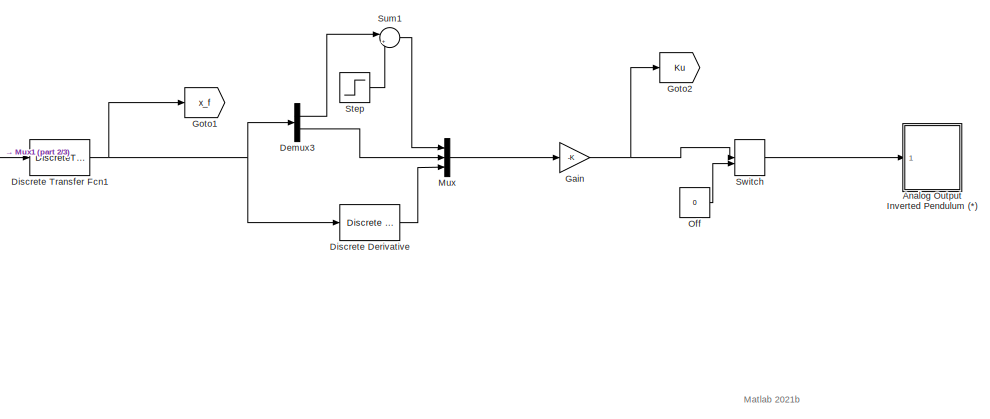
[diagram: root canvas - part 1/3, top center region]
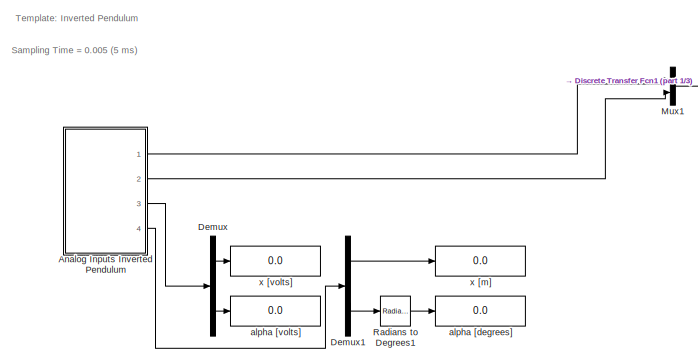
[diagram: root canvas - part 2/3, top left region]
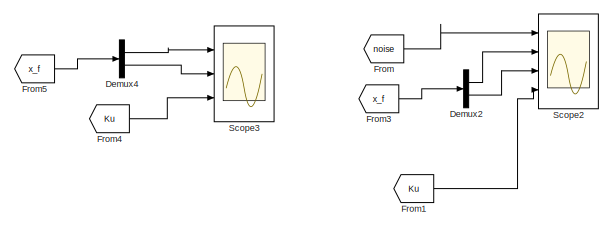
[diagram: root canvas - part 3/3, bottom right region]
MODEL slx_4a18c5ab3ae8
KIND model
CONFIG AbsTol = auto
CONFIG EnableMultiTasking = off
CONFIG FixedStep = 0.005
CONFIG MaxStep = auto
CONFIG MinStep = auto
CONFIG RelTol = 1e-3
CONFIG SampleTimeConstraint = Unconstrained
CONFIG SolverName = FixedStepDiscrete
CONFIG StartTime = 0.0
CONFIG StopTime = 40
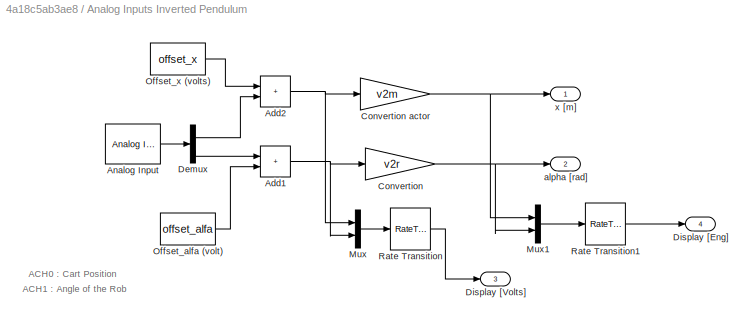
BLOCK [SubSystem] Analog Inputs Inverted Pendulum
  Ports = [0, 4]
  RequestExecContextInheritance = off
BLOCK [Sum] Analog Inputs Inverted Pendulum/Add1
  IconShape = rectangular
  Ports = [2, 1]
BLOCK [Sum] Analog Inputs Inverted Pendulum/Add2
  IconShape = rectangular
  Ports = [2, 1]
BLOCK [Reference] Analog Inputs Inverted Pendulum/Analog Input  REF=sldrtlib/Analog Input
  AttributesFormatString = National Instruments\nPCI-6014 [auto]
  Ports = [0, 1]
  SourceBlock = sldrtlib/Analog Input
  SourceProductBaseCode = WT
  SourceType = Simulink Desktop Real-Time Analog Input
BLOCK [Gain] Analog Inputs Inverted Pendulum/Convertion 
  Gain = v2r
BLOCK [Gain] Analog Inputs Inverted Pendulum/Convertion actor
  Gain = v2m
BLOCK [Demux] Analog Inputs Inverted Pendulum/Demux
  Outputs = 2
  Ports = [1, 2]
BLOCK [Outport] Analog Inputs Inverted Pendulum/Display [Eng]
  Port = 4
  VectorParamsAs1DForOutWhenUnconnected = off
BLOCK [Outport] Analog Inputs Inverted Pendulum/Display [Volts]
  Port = 3
  VectorParamsAs1DForOutWhenUnconnected = off
BLOCK [Mux] Analog Inputs Inverted Pendulum/Mux
  DisplayOption = bar
  Inputs = 2
  Ports = [2, 1]
BLOCK [Mux] Analog Inputs Inverted Pendulum/Mux1
  DisplayOption = bar
  Inputs = 2
  Ports = [2, 1]
BLOCK [Constant] Analog Inputs Inverted Pendulum/Offset_alfa (volt)
  Value = offset_alfa
BLOCK [Constant] Analog Inputs Inverted Pendulum/Offset_x (volts)
  Value = offset_x
BLOCK [RateTransition] Analog Inputs Inverted Pendulum/Rate Transition
  OutPortSampleTime = 0.25
BLOCK [RateTransition] Analog Inputs Inverted Pendulum/Rate Transition1
  OutPortSampleTime = 0.25
BLOCK [Outport] Analog Inputs Inverted Pendulum/alpha [rad]
  Port = 2
  VectorParamsAs1DForOutWhenUnconnected = off
BLOCK [Outport] Analog Inputs Inverted Pendulum/x [m]
  VectorParamsAs1DForOutWhenUnconnected = off
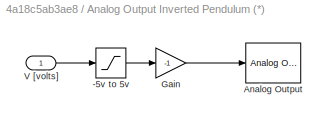
BLOCK [SubSystem] Analog Output Inverted Pendulum (*)
  NameLocation = left
  Ports = [1]
  RequestExecContextInheritance = off
BLOCK [Saturate] Analog Output Inverted Pendulum (*)/-5v to 5v
  LowerLimit = -5
  UpperLimit = 5
BLOCK [Reference] Analog Output Inverted Pendulum (*)/Analog Output  REF=sldrtlib/Analog Output
  AttributesFormatString = National Instruments\nPCI-6014 [auto]
  Ports = [1]
  SourceBlock = sldrtlib/Analog Output
  SourceProductBaseCode = WT
  SourceType = Simulink Desktop Real-Time Analog Output
BLOCK [Gain] Analog Output Inverted Pendulum (*)/Gain
  Gain = -1
BLOCK [Inport] Analog Output Inverted Pendulum (*)/V [volts]
BLOCK [Demux] Demux
  Outputs = 2
  Ports = [1, 2]
BLOCK [Demux] Demux1
  Outputs = 2
  Ports = [1, 2]
BLOCK [Demux] Demux2
  Commented = on
  Outputs = 2
  Ports = [1, 2]
BLOCK [Demux] Demux3
  Outputs = 2
  Ports = [1, 2]
BLOCK [Demux] Demux4
  Outputs = 2
  Ports = [1, 2]
BLOCK [Reference] Discrete Derivative  REF=simulink/Discrete/Discrete Derivative
  Ports = [1, 1]
  SourceBlock = simulink/Discrete/Discrete Derivative
  SourceProductBaseCode = SL
  SourceType = Discrete Derivative
BLOCK [DiscreteTransferFcn] Discrete Transfer Fcn1
  Denominator = [(1+wc*Ts), -1]
  InputPortMap = u0
  Numerator = [wc*Ts, 0]
  Ports = [1, 1]
  SampleTime = Ts
BLOCK [From] From
  Commented = on
  GotoTag = noise
BLOCK [From] From1
  Commented = on
  GotoTag = Ku
BLOCK [From] From3
  Commented = on
  GotoTag = x_f
BLOCK [From] From4
  GotoTag = Ku
BLOCK [From] From5
  GotoTag = x_f
BLOCK [Gain] Gain
  Gain = -K
  Multiplication = Matrix(K*u)
BLOCK [Goto] Goto1
  GotoTag = x_f
BLOCK [Goto] Goto2
  GotoTag = Ku
BLOCK [Mux] Mux
  DisplayOption = bar
  Inputs = 3
  Ports = [3, 1]
BLOCK [Mux] Mux1
  DisplayOption = bar
  Inputs = 2
  Ports = [2, 1]
BLOCK [Constant] Off
  Value = 0
BLOCK [Reference] Radians to Degrees1  REF=simulink_extras/Transformations/Radians
to Degrees
  Ports = [1, 1]
  SourceBlock = simulink_extras/Transformations/Radians\nto Degrees
  SourceProductBaseCode = SL
  SourceType = RadiansToDegrees
BLOCK [Scope] Scope2
  Commented = on
  Floating = off
  NumInputPorts = 4
  Ports = [4]
  ScopeSpecificationString = Simulink.scopes.TimeScopeBlockCfg('CurrentConfiguration', extmgr.ConfigurationSet(extmgr.Configuration('Core','General UI',true),extmgr.Configuration('Core','Source UI',true),extmgr.Configuration('Sources','WiredSimulink',true,'DataLoggingVariableName','ScopeData2'),extmgr.Configuration('Visuals','Time Domain',true,'SerializedDisplays',{struct('MinYLimReal','-0.01782','MaxYLimReal','0.01125','YLab...<+3436ch>
BLOCK [Scope] Scope3
  Floating = off
  NumInputPorts = 3
  Ports = [3]
  ScopeSpecificationString = Simulink.scopes.TimeScopeBlockCfg('CurrentConfiguration', extmgr.ConfigurationSet(extmgr.Configuration('Core','General UI',true),extmgr.Configuration('Core','Source UI',true),extmgr.Configuration('Sources','WiredSimulink',true,'DataLoggingVariableName','ScopeData1'),extmgr.Configuration('Visuals','Time Domain',true,'SerializedDisplays',{struct('MinYLimReal','-0.40849','MaxYLimReal','0.32299','YLab...<+2805ch>
BLOCK [Step] Step
  After = 0
  SampleTime = 0
  Time = 20
BLOCK [Sum] Sum1
  Inputs = |++
  Ports = [2, 1]
BLOCK [ManualSwitch] Switch  
BLOCK [Display] alpha [degrees]
  Decimation = 1
  Ports = [1]
BLOCK [Display] alpha [volts]
  Decimation = 1
  Ports = [1]
BLOCK [Display] x [m]
  Decimation = 1
  Ports = [1]
BLOCK [Display] x [volts]
  Decimation = 1
  Ports = [1]
ANNOTATION (root): Matlab 2021b
ANNOTATION (root): Sampling Time = 0.005 (5 ms)
ANNOTATION (root): Template: Inverted Pendulum
ANNOTATION Analog Inputs Inverted Pendulum: ACH0 : Cart Position
ANNOTATION Analog Inputs Inverted Pendulum: ACH1 : Angle of the Rob
NET Analog Inputs Inverted Pendulum/Add1:1 -> Analog Inputs Inverted Pendulum/Convertion :1, Analog Inputs Inverted Pendulum/Mux:2
NET Analog Inputs Inverted Pendulum/Add2:1 -> Analog Inputs Inverted Pendulum/Convertion actor:1, Analog Inputs Inverted Pendulum/Mux:1
LINE Analog Inputs Inverted Pendulum/Analog Input:1 -> Analog Inputs Inverted Pendulum/Demux:1
NET Analog Inputs Inverted Pendulum/Convertion :1 -> Analog Inputs Inverted Pendulum/Mux1:2, Analog Inputs Inverted Pendulum/alpha [rad]:1
NET Analog Inputs Inverted Pendulum/Convertion actor:1 -> Analog Inputs Inverted Pendulum/Mux1:1, Analog Inputs Inverted Pendulum/x [m]:1
LINE Analog Inputs Inverted Pendulum/Demux:1 -> Analog Inputs Inverted Pendulum/Add2:2
LINE Analog Inputs Inverted Pendulum/Demux:2 -> Analog Inputs Inverted Pendulum/Add1:1
LINE Analog Inputs Inverted Pendulum/Mux1:1 -> Analog Inputs Inverted Pendulum/Rate Transition1:1
LINE Analog Inputs Inverted Pendulum/Mux:1 -> Analog Inputs Inverted Pendulum/Rate Transition:1
LINE Analog Inputs Inverted Pendulum/Offset_alfa (volt):1 -> Analog Inputs Inverted Pendulum/Add1:2
LINE Analog Inputs Inverted Pendulum/Offset_x (volts):1 -> Analog Inputs Inverted Pendulum/Add2:1
LINE Analog Inputs Inverted Pendulum/Rate Transition1:1 -> Analog Inputs Inverted Pendulum/Display [Eng]:1
LINE Analog Inputs Inverted Pendulum/Rate Transition:1 -> Analog Inputs Inverted Pendulum/Display [Volts]:1
LINE Analog Inputs Inverted Pendulum:1 -> Mux1:1
LINE Analog Inputs Inverted Pendulum:2 -> Mux1:2
LINE Analog Inputs Inverted Pendulum:3 -> Demux:1
LINE Analog Inputs Inverted Pendulum:4 -> Demux1:1
LINE Analog Output Inverted Pendulum (*)/-5v to 5v:1 -> Analog Output Inverted Pendulum (*)/Gain:1
LINE Analog Output Inverted Pendulum (*)/Gain:1 -> Analog Output Inverted Pendulum (*)/Analog Output:1
LINE Analog Output Inverted Pendulum (*)/V [volts]:1 -> Analog Output Inverted Pendulum (*)/-5v to 5v:1
LINE Demux1:1 -> x [m]:1
LINE Demux1:2 -> Radians to Degrees1:1
LINE Demux2:1 -> Scope2:2
LINE Demux2:2 -> Scope2:3
LINE Demux3:1 -> Sum1:1
LINE Demux3:2 -> Mux:2
LINE Demux4:1 -> Scope3:1
LINE Demux4:2 -> Scope3:2
LINE Demux:1 -> x [volts]:1
LINE Demux:2 -> alpha [volts]:1
LINE Discrete Derivative:1 -> Mux:3
NET Discrete Transfer Fcn1:1 -> Demux3:1, Discrete Derivative:1, Goto1:1
LINE From1:1 -> Scope2:4
LINE From3:1 -> Demux2:1
LINE From4:1 -> Scope3:3
LINE From5:1 -> Demux4:1
LINE From:1 -> Scope2:1
NET Gain:1 -> Goto2:1, Switch  :1
LINE Mux1:1 -> Discrete Transfer Fcn1:1
LINE Mux:1 -> Gain:1
LINE Off:1 -> Switch  :2
LINE Radians to Degrees1:1 -> alpha [degrees]:1
LINE Step:1 -> Sum1:2
LINE Sum1:1 -> Mux:1
LINE Switch  :1 -> Analog Output Inverted Pendulum (*):1
note: NET lines group one-source signal fan-out (src -> all destinations, sorted); 1:1 wires keep LINE
